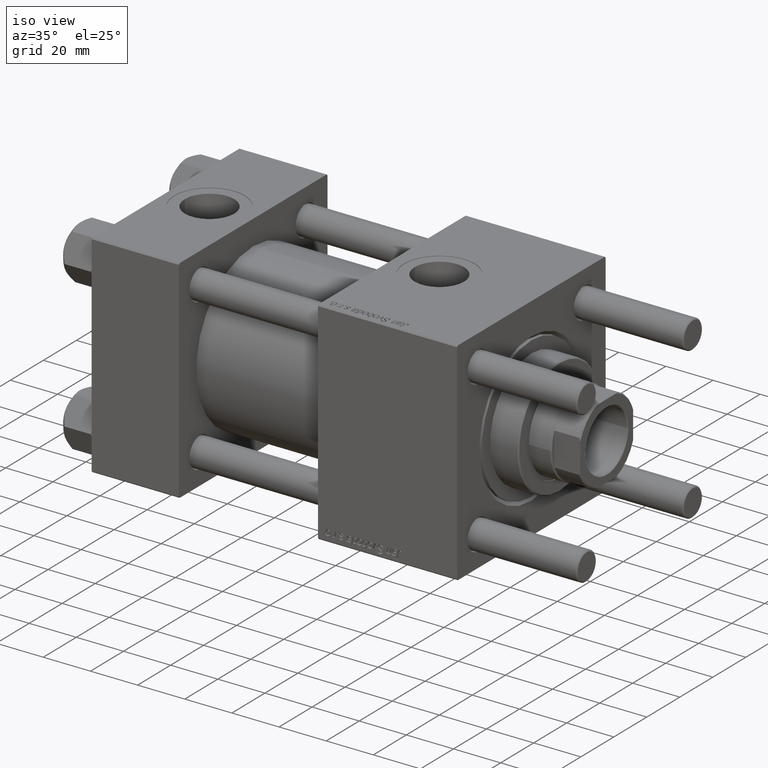
[diagram: clean part render]
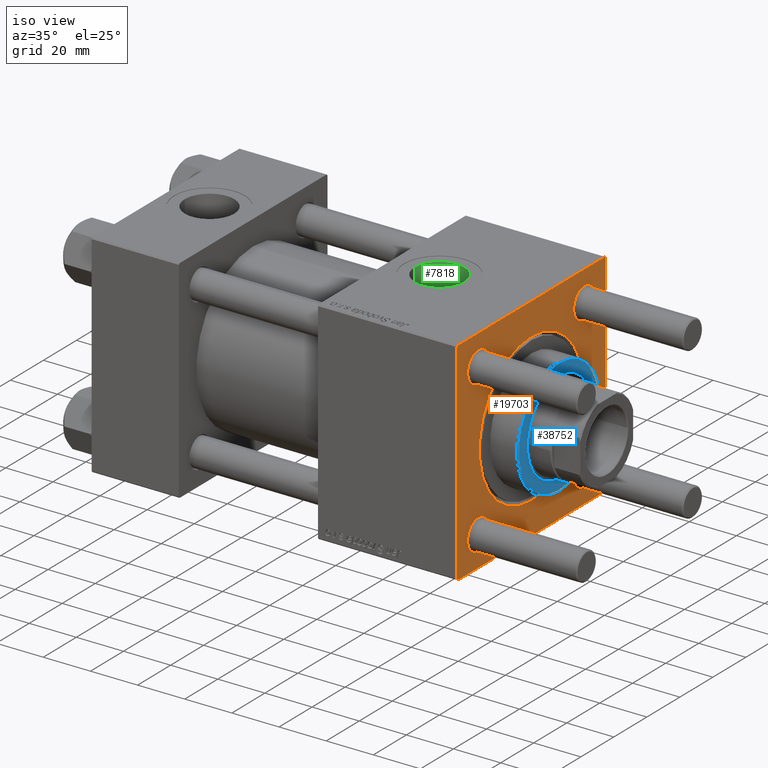
[diagram: same view with three faces highlighted in distinct colors, each labeled with its STEP entity id]
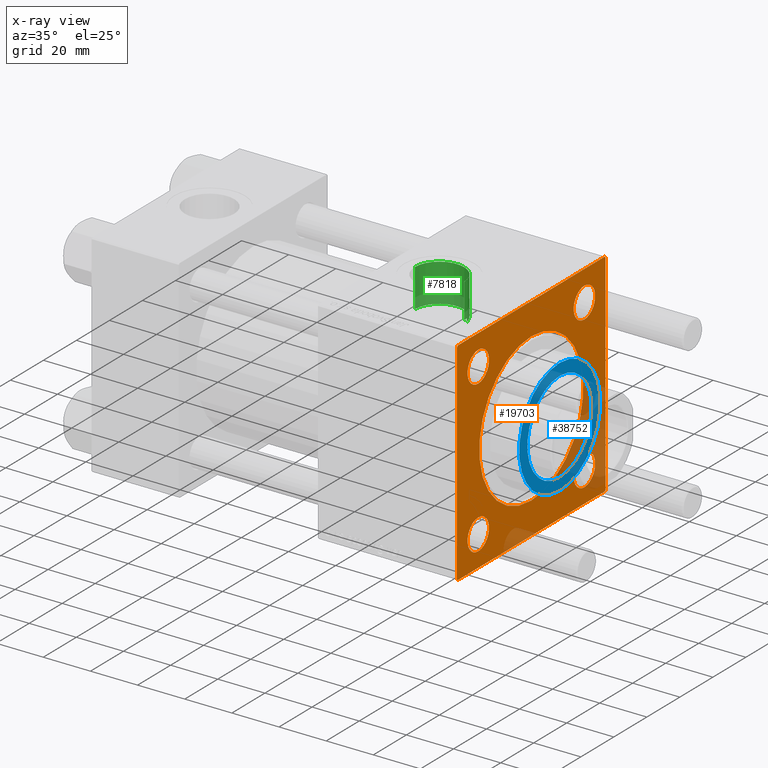
[diagram: x-ray of the same camera — body ghosted, the three highlighted faces saturated]
A machine part, iso view with three faces highlighted in distinct colors.
The next image is the same camera in x-ray (body ghosted, the three faces saturated) — at least one of them is partly hidden behind the body in this view.
Their STEP definitions:

[orange] entity #19703 — the highlighted planar face has unit normal (-1, 0, 0).
#362 = CIRCLE ( 'NONE', #8840, 6.500000000000061284 ) ;
#795 = CARTESIAN_POINT ( 'NONE',  ( 155.0000000000000000, 32.14999999999999147, -32.15000000000000568 ) ) ;
#1076 = CARTESIAN_POINT ( 'NONE',  ( 155.0000000000000000, -44.99999999999999289, -44.49999999999991473 ) ) ;
#1446 = CARTESIAN_POINT ( 'NONE',  ( 155.0000000000000000, -32.14999999999997726, -25.64999999999994884 ) ) ;
#2023 = VERTEX_POINT ( 'NONE', #25281 ) ;
#2451 = AXIS2_PLACEMENT_3D ( 'NONE', #45114, #13486, #36544 ) ;
#3189 = DIRECTION ( 'NONE',  ( 0.000000000000000000, 0.000000000000000000, 1.000000000000000000 ) ) ;
#3223 = EDGE_CURVE ( 'NONE', #28032, #44451, #15171, .T. ) ;
#3558 = ORIENTED_EDGE ( 'NONE', *, *, #17139, .T. ) ;
#3691 = DIRECTION ( 'NONE',  ( -0.000000000000000000, 0.000000000000000000, 1.000000000000000000 ) ) ;
#4630 = LINE ( 'NONE', #50431, #55457 ) ;
#4894 = DIRECTION ( 'NONE',  ( 0.000000000000000000, 0.000000000000000000, 1.000000000000000000 ) ) ;
#4984 = VECTOR ( 'NONE', #29636, 1000.000000000000000 ) ;
#5029 = DIRECTION ( 'NONE',  ( -1.000000000000000000, -0.000000000000000000, -0.000000000000000000 ) ) ;
#5816 = CARTESIAN_POINT ( 'NONE',  ( 155.0000000000000000, 44.50000000000001421, -45.00000000000000000 ) ) ;
#6138 = DIRECTION ( 'NONE',  ( -1.000000000000000000, -0.000000000000000000, -0.000000000000000000 ) ) ;
#6344 = CARTESIAN_POINT ( 'NONE',  ( 155.0000000000000000, -32.14999999999997726, 32.15000000000001279 ) ) ;
#6958 = FACE_BOUND ( 'NONE', #22407, .T. ) ;
#8016 = CARTESIAN_POINT ( 'NONE',  ( 155.0000000000000000, 32.14999999999999147, -25.64999999999994529 ) ) ;
#8024 = AXIS2_PLACEMENT_3D ( 'NONE', #30023, #57486, #3691 ) ;
#8336 = VECTOR ( 'NONE', #53711, 1000.000000000000000 ) ;
#8840 = AXIS2_PLACEMENT_3D ( 'NONE', #9136, #36325, #45482 ) ;
#9136 = CARTESIAN_POINT ( 'NONE',  ( 155.0000000000000000, -32.14999999999997726, -32.15000000000001279 ) ) ;
#9706 = CARTESIAN_POINT ( 'NONE',  ( 155.0000000000000000, -32.14999999999997726, 25.64999999999994884 ) ) ;
#10865 = DIRECTION ( 'NONE',  ( 0.000000000000000000, 0.000000000000000000, 1.000000000000000000 ) ) ;
#11125 = AXIS2_PLACEMENT_3D ( 'NONE', #54819, #15204, #4894 ) ;
#11340 = EDGE_CURVE ( 'NONE', #39709, #28101, #362, .T. ) ;
#11689 = FACE_BOUND ( 'NONE', #56132, .T. ) ;
#12030 = ORIENTED_EDGE ( 'NONE', *, *, #14306, .F. ) ;
#12210 = EDGE_CURVE ( 'NONE', #16127, #45998, #25776, .T. ) ;
#12811 = CARTESIAN_POINT ( 'NONE',  ( 155.0000000000000000, 32.14999999999999147, 32.15000000000000568 ) ) ;
#13012 = ORIENTED_EDGE ( 'NONE', *, *, #33854, .T. ) ;
#13223 = DIRECTION ( 'NONE',  ( -1.000000000000000000, -0.000000000000000000, -0.000000000000000000 ) ) ;
#13236 = CARTESIAN_POINT ( 'NONE',  ( 155.0000000000000000, 45.00000000000001421, 45.00000000000000000 ) ) ;
#13486 = DIRECTION ( 'NONE',  ( -1.000000000000000000, -0.000000000000000000, -0.000000000000000000 ) ) ;
#13789 = EDGE_CURVE ( 'NONE', #39908, #56974, #18367, .T. ) ;
#13843 = CARTESIAN_POINT ( 'NONE',  ( 155.0000000000000000, 45.00000000000001421, -45.00000000000000000 ) ) ;
#13936 = DIRECTION ( 'NONE',  ( 0.000000000000000000, -0.7071067811865474617, 0.7071067811865474617 ) ) ;
#14306 = EDGE_CURVE ( 'NONE', #50900, #40787, #54313, .T. ) ;
#14350 = ORIENTED_EDGE ( 'NONE', *, *, #23717, .T. ) ;
#14398 = ORIENTED_EDGE ( 'NONE', *, *, #37786, .T. ) ;
#14940 = ORIENTED_EDGE ( 'NONE', *, *, #19602, .T. ) ;
#15171 = CIRCLE ( 'NONE', #45339, 6.500000000000061284 ) ;
#15204 = DIRECTION ( 'NONE',  ( -1.000000000000000000, -0.000000000000000000, -0.000000000000000000 ) ) ;
#15586 = CIRCLE ( 'NONE', #31635, 6.500000000000061284 ) ;
#15854 = CIRCLE ( 'NONE', #11125, 6.500000000000061284 ) ;
#16127 = VERTEX_POINT ( 'NONE', #20252 ) ;
#16567 = VECTOR ( 'NONE', #47701, 1000.000000000000000 ) ;
#16635 = LINE ( 'NONE', #26075, #4984 ) ;
#16687 = CARTESIAN_POINT ( 'NONE',  ( 155.0000000000000000, -45.00000000000000000, 44.99999999999998579 ) ) ;
#16701 = CARTESIAN_POINT ( 'NONE',  ( 155.0000000000000000, 0.000000000000000000, -31.50000000000000000 ) ) ;
#17139 = EDGE_CURVE ( 'NONE', #45998, #19652, #29691, .T. ) ;
#17228 = VERTEX_POINT ( 'NONE', #58034 ) ;
#17301 = ORIENTED_EDGE ( 'NONE', *, *, #13789, .T. ) ;
#17394 = LINE ( 'NONE', #13236, #8336 ) ;
#17417 = AXIS2_PLACEMENT_3D ( 'NONE', #30873, #39132, #35294 ) ;
#18152 = VERTEX_POINT ( 'NONE', #44086 ) ;
#18273 = EDGE_LOOP ( 'NONE', ( #14350, #51577 ) ) ;
#18367 = CIRCLE ( 'NONE', #17417, 31.50000000000000000 ) ;
#18934 = CARTESIAN_POINT ( 'NONE',  ( 155.0000000000000000, -32.14999999999997726, 32.15000000000001279 ) ) ;
#19602 = EDGE_CURVE ( 'NONE', #53252, #18152, #15586, .T. ) ;
#19652 = VERTEX_POINT ( 'NONE', #1076 ) ;
#19703 = ADVANCED_FACE ( 'NONE', ( #25871, #43303, #20864, #6958, #11689, #38866 ), #39458, .F. ) ;
#20028 = EDGE_LOOP ( 'NONE', ( #50928, #52390 ) ) ;
#20252 = CARTESIAN_POINT ( 'NONE',  ( 155.0000000000000000, -44.49999999999994316, 44.99999999999998579 ) ) ;
#20395 = CIRCLE ( 'NONE', #2451, 6.500000000000061284 ) ;
#20864 = FACE_BOUND ( 'NONE', #18273, .T. ) ;
#21003 = CARTESIAN_POINT ( 'NONE',  ( 155.0000000000000000, 3.857637417314162689E-15, 31.50000000000000000 ) ) ;
#21619 = CIRCLE ( 'NONE', #52716, 6.500000000000061284 ) ;
#22026 = CARTESIAN_POINT ( 'NONE',  ( 155.0000000000000000, 45.00000000000001421, 44.49999999999997158 ) ) ;
#22127 = VECTOR ( 'NONE', #13936, 1000.000000000000114 ) ;
#22407 = EDGE_LOOP ( 'NONE', ( #42570, #46721 ) ) ;
#23079 = DIRECTION ( 'NONE',  ( 0.000000000000000000, 0.000000000000000000, 1.000000000000000000 ) ) ;
#23159 = VERTEX_POINT ( 'NONE', #45320 ) ;
#23717 = EDGE_CURVE ( 'NONE', #17228, #2023, #20395, .T. ) ;
#24044 = VECTOR ( 'NONE', #41889, 1000.000000000000000 ) ;
#25281 = CARTESIAN_POINT ( 'NONE',  ( 155.0000000000000000, 32.14999999999999147, 38.65000000000007674 ) ) ;
#25776 = LINE ( 'NONE', #43792, #45681 ) ;
#25871 = FACE_BOUND ( 'NONE', #20028, .T. ) ;
#26026 = CARTESIAN_POINT ( 'NONE',  ( 155.0000000000000000, -32.14999999999997726, 38.65000000000007674 ) ) ;
#26075 = CARTESIAN_POINT ( 'NONE',  ( 155.0000000000000000, -44.49999999999992895, -45.00000000000000000 ) ) ;
#26540 = CARTESIAN_POINT ( 'NONE',  ( 155.0000000000000000, 45.00000000000001421, -44.50000000000000000 ) ) ;
#26698 = DIRECTION ( 'NONE',  ( 0.000000000000000000, 0.000000000000000000, 1.000000000000000000 ) ) ;
#26825 = VERTEX_POINT ( 'NONE', #22026 ) ;
#26887 = CARTESIAN_POINT ( 'NONE',  ( 155.0000000000000000, -44.49999999999990052, -45.00000000000000000 ) ) ;
#27828 = LINE ( 'NONE', #36393, #22127 ) ;
#28032 = VERTEX_POINT ( 'NONE', #26026 ) ;
#28101 = VERTEX_POINT ( 'NONE', #1446 ) ;
#28135 = EDGE_CURVE ( 'NONE', #44451, #28032, #21619, .T. ) ;
#29636 = DIRECTION ( 'NONE',  ( 0.000000000000000000, 0.7071067811865524577, -0.7071067811865426878 ) ) ;
#29691 = LINE ( 'NONE', #16687, #16567 ) ;
#29695 = CIRCLE ( 'NONE', #46691, 31.50000000000000000 ) ;
#29920 = EDGE_CURVE ( 'NONE', #50900, #23159, #34819, .T. ) ;
#29985 = AXIS2_PLACEMENT_3D ( 'NONE', #12811, #40286, #26698 ) ;
#30023 = CARTESIAN_POINT ( 'NONE',  ( 155.0000000000000000, 0.000000000000000000, 0.000000000000000000 ) ) ;
#30396 = DIRECTION ( 'NONE',  ( -1.000000000000000000, -0.000000000000000000, -0.000000000000000000 ) ) ;
#30465 = ORIENTED_EDGE ( 'NONE', *, *, #54022, .T. ) ;
#30873 = CARTESIAN_POINT ( 'NONE',  ( 155.0000000000000000, 0.000000000000000000, 0.000000000000000000 ) ) ;
#31635 = AXIS2_PLACEMENT_3D ( 'NONE', #795, #13223, #50456 ) ;
#33036 = ORIENTED_EDGE ( 'NONE', *, *, #12210, .T. ) ;
#33854 = EDGE_CURVE ( 'NONE', #19652, #40787, #16635, .T. ) ;
#34819 = LINE ( 'NONE', #26540, #46572 ) ;
#35294 = DIRECTION ( 'NONE',  ( 0.000000000000000000, 0.000000000000000000, 1.000000000000000000 ) ) ;
#35669 = DIRECTION ( 'NONE',  ( 0.000000000000000000, 0.000000000000000000, -1.000000000000000000 ) ) ;
#36250 = ORIENTED_EDGE ( 'NONE', *, *, #38167, .T. ) ;
#36325 = DIRECTION ( 'NONE',  ( -1.000000000000000000, -0.000000000000000000, -0.000000000000000000 ) ) ;
#36393 = CARTESIAN_POINT ( 'NONE',  ( 155.0000000000000000, 44.49999999999998579, 45.00000000000000000 ) ) ;
#36544 = DIRECTION ( 'NONE',  ( 0.000000000000000000, 0.000000000000000000, 1.000000000000000000 ) ) ;
#36781 = AXIS2_PLACEMENT_3D ( 'NONE', #53415, #30396, #3189 ) ;
#37786 = EDGE_CURVE ( 'NONE', #26825, #42868, #27828, .T. ) ;
#38167 = EDGE_CURVE ( 'NONE', #56974, #39908, #29695, .T. ) ;
#38619 = CARTESIAN_POINT ( 'NONE',  ( 155.0000000000000000, 0.000000000000000000, 0.000000000000000000 ) ) ;
#38822 = ORIENTED_EDGE ( 'NONE', *, *, #48256, .F. ) ;
#38866 = FACE_OUTER_BOUND ( 'NONE', #53227, .T. ) ;
#39132 = DIRECTION ( 'NONE',  ( -1.000000000000000000, -0.000000000000000000, -0.000000000000000000 ) ) ;
#39458 = PLANE ( 'NONE',  #8024 ) ;
#39709 = VERTEX_POINT ( 'NONE', #57975 ) ;
#39908 = VERTEX_POINT ( 'NONE', #16701 ) ;
#40286 = DIRECTION ( 'NONE',  ( -1.000000000000000000, -0.000000000000000000, -0.000000000000000000 ) ) ;
#40723 = CARTESIAN_POINT ( 'NONE',  ( 155.0000000000000000, 44.49999999999998579, 45.00000000000000000 ) ) ;
#40787 = VERTEX_POINT ( 'NONE', #26887 ) ;
#41889 = DIRECTION ( 'NONE',  ( 0.000000000000000000, -1.000000000000000000, 0.000000000000000000 ) ) ;
#42570 = ORIENTED_EDGE ( 'NONE', *, *, #28135, .T. ) ;
#42868 = VERTEX_POINT ( 'NONE', #40723 ) ;
#43303 = FACE_BOUND ( 'NONE', #53318, .T. ) ;
#43548 = DIRECTION ( 'NONE',  ( 0.000000000000000000, 0.000000000000000000, 1.000000000000000000 ) ) ;
#43792 = CARTESIAN_POINT ( 'NONE',  ( 155.0000000000000000, -45.00000000000000000, 44.49999999999995737 ) ) ;
#44086 = CARTESIAN_POINT ( 'NONE',  ( 155.0000000000000000, 32.14999999999999147, -38.65000000000006963 ) ) ;
#44451 = VERTEX_POINT ( 'NONE', #9706 ) ;
#45114 = CARTESIAN_POINT ( 'NONE',  ( 155.0000000000000000, 32.14999999999999147, 32.15000000000000568 ) ) ;
#45320 = CARTESIAN_POINT ( 'NONE',  ( 155.0000000000000000, 45.00000000000001421, -44.49999999999997158 ) ) ;
#45339 = AXIS2_PLACEMENT_3D ( 'NONE', #6344, #52416, #43548 ) ;
#45482 = DIRECTION ( 'NONE',  ( 0.000000000000000000, 0.000000000000000000, 1.000000000000000000 ) ) ;
#45681 = VECTOR ( 'NONE', #53539, 1000.000000000000114 ) ;
#45998 = VERTEX_POINT ( 'NONE', #56773 ) ;
#46026 = CIRCLE ( 'NONE', #29985, 6.500000000000061284 ) ;
#46572 = VECTOR ( 'NONE', #48403, 1000.000000000000114 ) ;
#46691 = AXIS2_PLACEMENT_3D ( 'NONE', #38619, #6138, #10865 ) ;
#46721 = ORIENTED_EDGE ( 'NONE', *, *, #3223, .T. ) ;
#47701 = DIRECTION ( 'NONE',  ( 0.000000000000000000, 7.709882115452478166E-17, -1.000000000000000000 ) ) ;
#48256 = EDGE_CURVE ( 'NONE', #26825, #23159, #4630, .T. ) ;
#48403 = DIRECTION ( 'NONE',  ( -0.000000000000000000, 0.7071067811865474617, 0.7071067811865474617 ) ) ;
#48900 = ORIENTED_EDGE ( 'NONE', *, *, #29920, .T. ) ;
#49040 = CIRCLE ( 'NONE', #36781, 6.500000000000061284 ) ;
#50431 = CARTESIAN_POINT ( 'NONE',  ( 155.0000000000000000, 45.00000000000001421, 45.00000000000000000 ) ) ;
#50456 = DIRECTION ( 'NONE',  ( 0.000000000000000000, 0.000000000000000000, 1.000000000000000000 ) ) ;
#50900 = VERTEX_POINT ( 'NONE', #5816 ) ;
#50928 = ORIENTED_EDGE ( 'NONE', *, *, #11340, .T. ) ;
#51577 = ORIENTED_EDGE ( 'NONE', *, *, #52085, .T. ) ;
#51921 = EDGE_CURVE ( 'NONE', #28101, #39709, #15854, .T. ) ;
#52085 = EDGE_CURVE ( 'NONE', #2023, #17228, #46026, .T. ) ;
#52390 = ORIENTED_EDGE ( 'NONE', *, *, #51921, .T. ) ;
#52416 = DIRECTION ( 'NONE',  ( -1.000000000000000000, -0.000000000000000000, -0.000000000000000000 ) ) ;
#52716 = AXIS2_PLACEMENT_3D ( 'NONE', #18934, #5029, #23079 ) ;
#53227 = EDGE_LOOP ( 'NONE', ( #3558, #13012, #12030, #48900, #38822, #14398, #30465, #33036 ) ) ;
#53252 = VERTEX_POINT ( 'NONE', #8016 ) ;
#53318 = EDGE_LOOP ( 'NONE', ( #57629, #14940 ) ) ;
#53415 = CARTESIAN_POINT ( 'NONE',  ( 155.0000000000000000, 32.14999999999999147, -32.15000000000000568 ) ) ;
#53539 = DIRECTION ( 'NONE',  ( -0.000000000000000000, -0.7071067811865474617, -0.7071067811865474617 ) ) ;
#53711 = DIRECTION ( 'NONE',  ( 0.000000000000000000, -1.000000000000000000, -1.541976423090495140E-16 ) ) ;
#54022 = EDGE_CURVE ( 'NONE', #42868, #16127, #17394, .T. ) ;
#54313 = LINE ( 'NONE', #13843, #24044 ) ;
#54819 = CARTESIAN_POINT ( 'NONE',  ( 155.0000000000000000, -32.14999999999997726, -32.15000000000001279 ) ) ;
#55457 = VECTOR ( 'NONE', #35669, 1000.000000000000000 ) ;
#56132 = EDGE_LOOP ( 'NONE', ( #17301, #36250 ) ) ;
#56773 = CARTESIAN_POINT ( 'NONE',  ( 155.0000000000000000, -45.00000000000000000, 44.49999999999995737 ) ) ;
#56974 = VERTEX_POINT ( 'NONE', #21003 ) ;
#57292 = EDGE_CURVE ( 'NONE', #18152, #53252, #49040, .T. ) ;
#57486 = DIRECTION ( 'NONE',  ( -1.000000000000000000, 0.000000000000000000, -0.000000000000000000 ) ) ;
#57629 = ORIENTED_EDGE ( 'NONE', *, *, #57292, .T. ) ;
#57975 = CARTESIAN_POINT ( 'NONE',  ( 155.0000000000000000, -32.14999999999997726, -38.65000000000007674 ) ) ;
#58034 = CARTESIAN_POINT ( 'NONE',  ( 155.0000000000000000, 32.14999999999999147, 25.64999999999994529 ) ) ;

[blue] entity #38752 — the highlighted planar face has unit normal (1, 0, 0).
#185 = EDGE_CURVE ( 'NONE', #17691, #55439, #57692, .T. ) ;
#219 = CARTESIAN_POINT ( 'NONE',  ( 0.000000000000000000, 0.000000000000000000, 40.70000000000000284 ) ) ;
#1766 = CARTESIAN_POINT ( 'NONE',  ( 0.000000000000000000, 0.000000000000000000, 40.70000000000000284 ) ) ;
#3776 = DIRECTION ( 'NONE',  ( 1.000000000000000000, 0.000000000000000000, 0.000000000000000000 ) ) ;
#7079 = FACE_OUTER_BOUND ( 'NONE', #26567, .T. ) ;
#7275 = CIRCLE ( 'NONE', #45042, 24.49999999999999645 ) ;
#7297 = CARTESIAN_POINT ( 'NONE',  ( -19.50000000000000000, 2.388061258337338939E-15, 40.70000000000000284 ) ) ;
#8390 = DIRECTION ( 'NONE',  ( 0.000000000000000000, 0.000000000000000000, 1.000000000000000000 ) ) ;
#11344 = CARTESIAN_POINT ( 'NONE',  ( 19.50000000000000000, 0.000000000000000000, 40.70000000000000284 ) ) ;
#11551 = DIRECTION ( 'NONE',  ( 0.000000000000000000, 0.000000000000000000, 1.000000000000000000 ) ) ;
#11954 = ORIENTED_EDGE ( 'NONE', *, *, #50408, .T. ) ;
#11976 = CARTESIAN_POINT ( 'NONE',  ( -24.49999999999999645, 0.000000000000000000, 40.70000000000000284 ) ) ;
#12631 = VERTEX_POINT ( 'NONE', #11976 ) ;
#13102 = CIRCLE ( 'NONE', #33857, 24.49999999999999645 ) ;
#14566 = CIRCLE ( 'NONE', #35300, 19.50000000000000000 ) ;
#15957 = FACE_BOUND ( 'NONE', #38867, .T. ) ;
#17179 = DIRECTION ( 'NONE',  ( 0.000000000000000000, 0.000000000000000000, 1.000000000000000000 ) ) ;
#17274 = CARTESIAN_POINT ( 'NONE',  ( 0.000000000000000000, 0.000000000000000000, 40.70000000000000284 ) ) ;
#17691 = VERTEX_POINT ( 'NONE', #7297 ) ;
#19150 = CARTESIAN_POINT ( 'NONE',  ( 0.000000000000000000, 0.000000000000000000, 40.70000000000000284 ) ) ;
#19825 = DIRECTION ( 'NONE',  ( 1.000000000000000000, 0.000000000000000000, -0.000000000000000000 ) ) ;
#20402 = PLANE ( 'NONE',  #35352 ) ;
#20980 = DIRECTION ( 'NONE',  ( 0.000000000000000000, 0.000000000000000000, 1.000000000000000000 ) ) ;
#24863 = CARTESIAN_POINT ( 'NONE',  ( 0.000000000000000000, 0.000000000000000000, 40.70000000000000284 ) ) ;
#25849 = ORIENTED_EDGE ( 'NONE', *, *, #37385, .F. ) ;
#26567 = EDGE_LOOP ( 'NONE', ( #46577, #11954 ) ) ;
#29595 = DIRECTION ( 'NONE',  ( 1.000000000000000000, 0.000000000000000000, 0.000000000000000000 ) ) ;
#33857 = AXIS2_PLACEMENT_3D ( 'NONE', #219, #44265, #3776 ) ;
#35300 = AXIS2_PLACEMENT_3D ( 'NONE', #17274, #8390, #49456 ) ;
#35352 = AXIS2_PLACEMENT_3D ( 'NONE', #1766, #20980, #19825 ) ;
#37314 = ORIENTED_EDGE ( 'NONE', *, *, #185, .F. ) ;
#37385 = EDGE_CURVE ( 'NONE', #55439, #17691, #14566, .T. ) ;
#38752 = ADVANCED_FACE ( 'NONE', ( #15957, #7079 ), #20402, .T. ) ;
#38867 = EDGE_LOOP ( 'NONE', ( #25849, #37314 ) ) ;
#44265 = DIRECTION ( 'NONE',  ( 0.000000000000000000, 0.000000000000000000, 1.000000000000000000 ) ) ;
#45042 = AXIS2_PLACEMENT_3D ( 'NONE', #19150, #17179, #53198 ) ;
#46577 = ORIENTED_EDGE ( 'NONE', *, *, #54060, .T. ) ;
#49456 = DIRECTION ( 'NONE',  ( 1.000000000000000000, 0.000000000000000000, 0.000000000000000000 ) ) ;
#50167 = AXIS2_PLACEMENT_3D ( 'NONE', #24863, #11551, #29595 ) ;
#50408 = EDGE_CURVE ( 'NONE', #55593, #12631, #7275, .T. ) ;
#50622 = CARTESIAN_POINT ( 'NONE',  ( 24.49999999999999645, 3.031000827889698861E-15, 40.70000000000000284 ) ) ;
#53198 = DIRECTION ( 'NONE',  ( 1.000000000000000000, 0.000000000000000000, 0.000000000000000000 ) ) ;
#54060 = EDGE_CURVE ( 'NONE', #12631, #55593, #13102, .T. ) ;
#55439 = VERTEX_POINT ( 'NONE', #11344 ) ;
#55593 = VERTEX_POINT ( 'NONE', #50622 ) ;
#57692 = CIRCLE ( 'NONE', #50167, 19.50000000000000000 ) ;

[green] entity #7818 — the highlighted cylindrical surface (edge-blend (fillet) strip) has radius 10.48 mm, axis along (0, 0, -1).
#2071 = AXIS2_PLACEMENT_3D ( 'NONE', #4945, #22702, #17966 ) ;
#2498 = DIRECTION ( 'NONE',  ( 0.000000000000000000, 0.000000000000000000, -1.000000000000000000 ) ) ;
#3074 = EDGE_CURVE ( 'NONE', #20797, #46366, #5720, .T. ) ;
#3423 = CARTESIAN_POINT ( 'NONE',  ( 126.2999999999999972, 1.934011375354389939, 67.79999999999999716 ) ) ;
#3761 = FACE_OUTER_BOUND ( 'NONE', #35542, .T. ) ;
#3809 = CARTESIAN_POINT ( 'NONE',  ( 105.5199999999999960, -6.938893903907227589E-15, 44.79999999999999005 ) ) ;
#4664 = VERTEX_POINT ( 'NONE', #56721 ) ;
#4945 = CARTESIAN_POINT ( 'NONE',  ( 116.0000000000000000, -6.938893903907227589E-15, 67.79999999999999716 ) ) ;
#5329 = DIRECTION ( 'NONE',  ( -0.000000000000000000, -0.000000000000000000, -1.000000000000000000 ) ) ;
#5720 = CIRCLE ( 'NONE', #25545, 10.48000000000000398 ) ;
#7818 = ADVANCED_FACE ( 'NONE', ( #3761 ), #30975, .F. ) ;
#7847 = DIRECTION ( 'NONE',  ( 1.000000000000000000, 0.000000000000000000, 0.000000000000000000 ) ) ;
#11155 = B_SPLINE_CURVE_WITH_KNOTS ( 'NONE', 3,
 ( #17508, #36699, #49704, #36108 ),
 .UNSPECIFIED., .F., .F.,
 ( 4, 4 ),
 ( 0.000000000000000000, 0.001934011375354386698 ),
 .UNSPECIFIED. ) ;
#11254 = ORIENTED_EDGE ( 'NONE', *, *, #18253, .T. ) ;
#12885 = LINE ( 'NONE', #3423, #33770 ) ;
#12969 = AXIS2_PLACEMENT_3D ( 'NONE', #56328, #5329, #19717 ) ;
#14147 = ORIENTED_EDGE ( 'NONE', *, *, #21435, .T. ) ;
#15466 = ORIENTED_EDGE ( 'NONE', *, *, #3074, .F. ) ;
#17508 = CARTESIAN_POINT ( 'NONE',  ( 126.2999999999999972, 1.934011375354389939, 29.93759509379468753 ) ) ;
#17966 = DIRECTION ( 'NONE',  ( -1.000000000000000000, 0.000000000000000000, 0.000000000000000000 ) ) ;
#18253 = EDGE_CURVE ( 'NONE', #50729, #46019, #11155, .T. ) ;
#19717 = DIRECTION ( 'NONE',  ( 1.000000000000000000, 0.000000000000000000, 0.000000000000000000 ) ) ;
#20797 = VERTEX_POINT ( 'NONE', #43823 ) ;
#21435 = EDGE_CURVE ( 'NONE', #36287, #46366, #44491, .T. ) ;
#21459 = CARTESIAN_POINT ( 'NONE',  ( 116.0000000000000000, -6.938893903907227589E-15, 28.59999999999998721 ) ) ;
#22702 = DIRECTION ( 'NONE',  ( 0.000000000000000000, 0.000000000000000000, -1.000000000000000000 ) ) ;
#24399 = CARTESIAN_POINT ( 'NONE',  ( 126.4800000000000040, -5.655464058400801311E-15, 67.79999999999999716 ) ) ;
#25545 = AXIS2_PLACEMENT_3D ( 'NONE', #21459, #30907, #7847 ) ;
#26199 = ORIENTED_EDGE ( 'NONE', *, *, #51767, .F. ) ;
#26466 = EDGE_CURVE ( 'NONE', #36287, #4664, #38426, .T. ) ;
#30654 = ORIENTED_EDGE ( 'NONE', *, *, #26466, .F. ) ;
#30907 = DIRECTION ( 'NONE',  ( 0.000000000000000000, 0.000000000000000000, 1.000000000000000000 ) ) ;
#30975 = CYLINDRICAL_SURFACE ( 'NONE', #2071, 10.48000000000000398 ) ;
#33770 = VECTOR ( 'NONE', #35051, 1000.000000000000000 ) ;
#34319 = CARTESIAN_POINT ( 'NONE',  ( 126.4800000000000040, 3.352779466116923030E-15, 30.00000000000000000 ) ) ;
#35051 = DIRECTION ( 'NONE',  ( 0.000000000000000000, 0.000000000000000000, -1.000000000000000000 ) ) ;
#35346 = DIRECTION ( 'NONE',  ( 0.000000000000000000, 0.000000000000000000, -1.000000000000000000 ) ) ;
#35542 = EDGE_LOOP ( 'NONE', ( #55641, #30654, #14147, #15466, #26199, #11254 ) ) ;
#36108 = CARTESIAN_POINT ( 'NONE',  ( 126.4800000000000040, 3.352779466116923030E-15, 30.00000000000000000 ) ) ;
#36287 = VERTEX_POINT ( 'NONE', #3809 ) ;
#36699 = CARTESIAN_POINT ( 'NONE',  ( 126.4210485436893237, 1.289340916902927958, 29.97924172559974210 ) ) ;
#37405 = LINE ( 'NONE', #24399, #51407 ) ;
#38426 = CIRCLE ( 'NONE', #12969, 10.48000000000000398 ) ;
#38432 = EDGE_CURVE ( 'NONE', #4664, #46019, #37405, .T. ) ;
#43823 = CARTESIAN_POINT ( 'NONE',  ( 126.2999999999999972, 1.934011375354389939, 28.59999999999998721 ) ) ;
#44491 = LINE ( 'NONE', #57508, #46758 ) ;
#46019 = VERTEX_POINT ( 'NONE', #34319 ) ;
#46366 = VERTEX_POINT ( 'NONE', #56704 ) ;
#46758 = VECTOR ( 'NONE', #35346, 1000.000000000000000 ) ;
#49704 = CARTESIAN_POINT ( 'NONE',  ( 126.4800000000000040, 0.6446704584514654224, 30.00000000000000000 ) ) ;
#50685 = CARTESIAN_POINT ( 'NONE',  ( 126.2999999999999972, 1.934011375354389939, 29.93759509379468753 ) ) ;
#50729 = VERTEX_POINT ( 'NONE', #50685 ) ;
#51407 = VECTOR ( 'NONE', #2498, 1000.000000000000000 ) ;
#51767 = EDGE_CURVE ( 'NONE', #50729, #20797, #12885, .T. ) ;
#55641 = ORIENTED_EDGE ( 'NONE', *, *, #38432, .F. ) ;
#56328 = CARTESIAN_POINT ( 'NONE',  ( 116.0000000000000000, -6.938893903907227589E-15, 44.79999999999999005 ) ) ;
#56704 = CARTESIAN_POINT ( 'NONE',  ( 105.5199999999999960, -6.938893903907227589E-15, 28.59999999999998721 ) ) ;
#56721 = CARTESIAN_POINT ( 'NONE',  ( 126.4800000000000040, -5.655464058400802100E-15, 44.79999999999999005 ) ) ;
#57508 = CARTESIAN_POINT ( 'NONE',  ( 105.5199999999999960, -6.938893903907227589E-15, 67.79999999999999716 ) ) ;